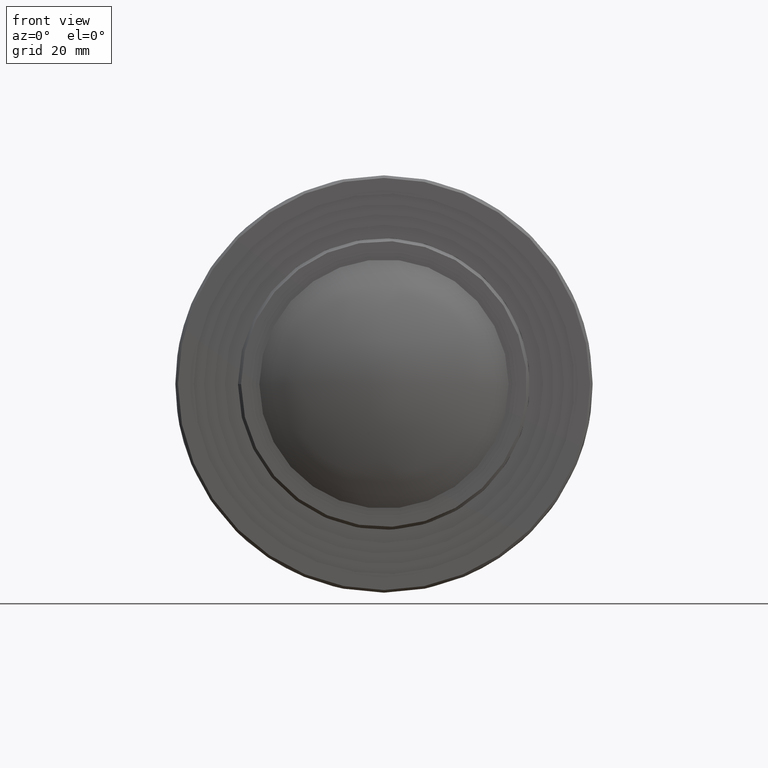
[diagram: clean part render]
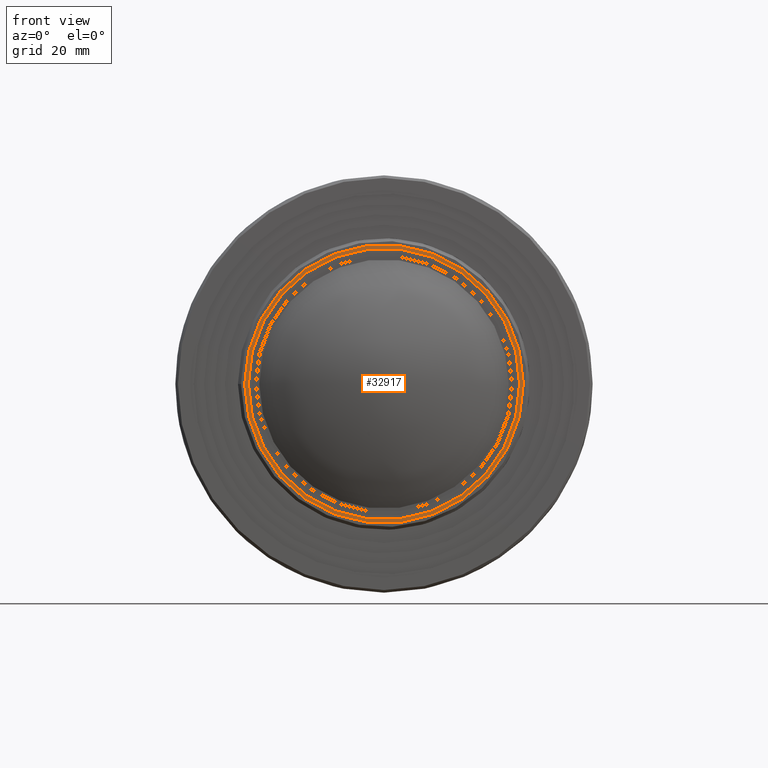
[diagram: same view with one face highlighted and labeled with its STEP entity id]
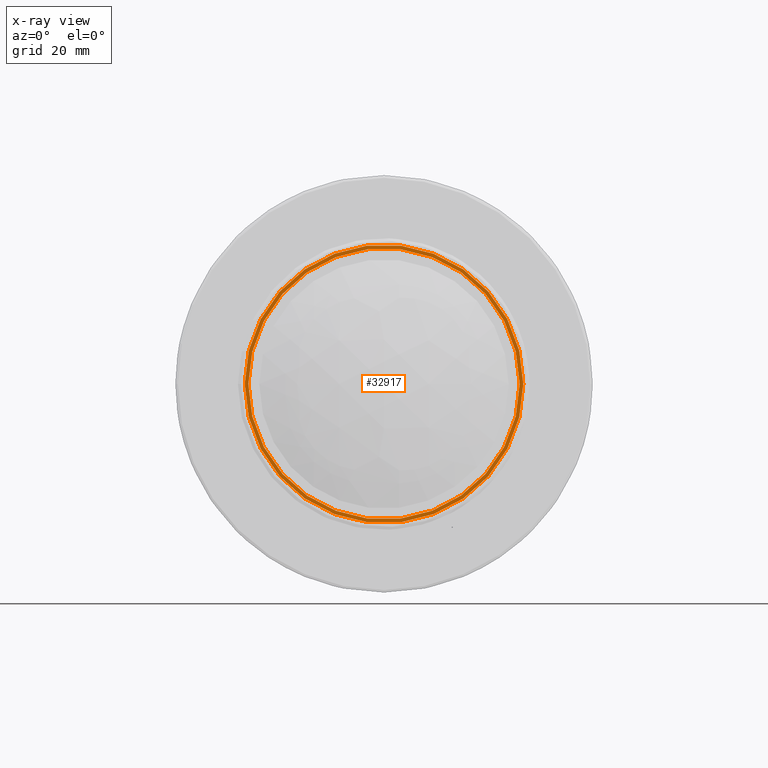
[diagram: x-ray of the same camera — body ghosted, the highlighted face saturated]
A machine part, front view. The second image highlights one B-rep face of the part: STEP entity #32917.
The next image is the same camera in x-ray: the body ghosted, the highlighted face saturated — about 0% of this face is hidden behind the body in this view.
In plain terms, the highlighted planar face has unit normal (0, -1, 0).
Its self-contained STEP definition (entity closure, byte-faithful):
#5069 = VERTEX_POINT ( 'NONE', #49397 ) ;
#5256 = ORIENTED_EDGE ( 'NONE', *, *, #92638, .T. ) ;
#9634 = ORIENTED_EDGE ( 'NONE', *, *, #97129, .T. ) ;
#19087 = AXIS2_PLACEMENT_3D ( 'NONE', #86235, #105569, #27674 ) ;
#22480 = DIRECTION ( 'NONE',  ( 8.276111117004479084E-19, -1.000000000000000000, 4.121950411566822445E-17 ) ) ;
#22959 = PLANE ( 'NONE',  #103633 ) ;
#25733 = CARTESIAN_POINT ( 'NONE',  ( 7.004645490090499625E-07, 8.044480324688741746, 4.044133903919279894E-07 ) ) ;
#27674 = DIRECTION ( 'NONE',  ( 1.000000000000000000, 0.000000000000000000, -4.121950505736728774E-17 ) ) ;
#30328 = CIRCLE ( 'NONE', #55776, 26.70175482975700731 ) ;
#32917 = ADVANCED_FACE ( 'NONE', ( #49691, #65044 ), #22959, .T. ) ;
#38919 = DIRECTION ( 'NONE',  ( 1.000000000000000000, 8.276111117004479084E-19, -4.121950411566823061E-17 ) ) ;
#49397 = CARTESIAN_POINT ( 'NONE',  ( 26.70175553022155412, 8.044480324688741746, 4.044133892912949130E-07 ) ) ;
#49691 = FACE_BOUND ( 'NONE', #74342, .T. ) ;
#55702 = CARTESIAN_POINT ( 'NONE',  ( 26.00175567440118840, 8.044480526543274834, 4.044133893201485080E-07 ) ) ;
#55776 = AXIS2_PLACEMENT_3D ( 'NONE', #25733, #22480, #104183 ) ;
#65044 = FACE_OUTER_BOUND ( 'NONE', #67164, .T. ) ;
#65603 = CARTESIAN_POINT ( 'NONE',  ( 2.489725200928343535E-05, 8.044480425616008290, 4.044133903919270365E-07 ) ) ;
#67164 = EDGE_LOOP ( 'NONE', ( #9634 ) ) ;
#74342 = EDGE_LOOP ( 'NONE', ( #5256 ) ) ;
#86235 = CARTESIAN_POINT ( 'NONE',  ( 7.004645490090499625E-07, 8.044480526543274834, 4.044133903919279894E-07 ) ) ;
#92638 = EDGE_CURVE ( 'NONE', #109105, #109105, #104387, .T. ) ;
#97129 = EDGE_CURVE ( 'NONE', #5069, #5069, #30328, .T. ) ;
#100283 = DIRECTION ( 'NONE',  ( 8.276111117004496417E-19, -1.000000000000000000, 4.121950411566822445E-17 ) ) ;
#103633 = AXIS2_PLACEMENT_3D ( 'NONE', #65603, #100283, #38919 ) ;
#104183 = DIRECTION ( 'NONE',  ( 1.000000000000000000, 0.000000000000000000, -4.121950367664733521E-17 ) ) ;
#104387 = CIRCLE ( 'NONE', #19087, 26.00175497393664159 ) ;
#105569 = DIRECTION ( 'NONE',  ( -8.276111117004479084E-19, 1.000000000000000000, -4.121950411566822445E-17 ) ) ;
#109105 = VERTEX_POINT ( 'NONE', #55702 ) ;